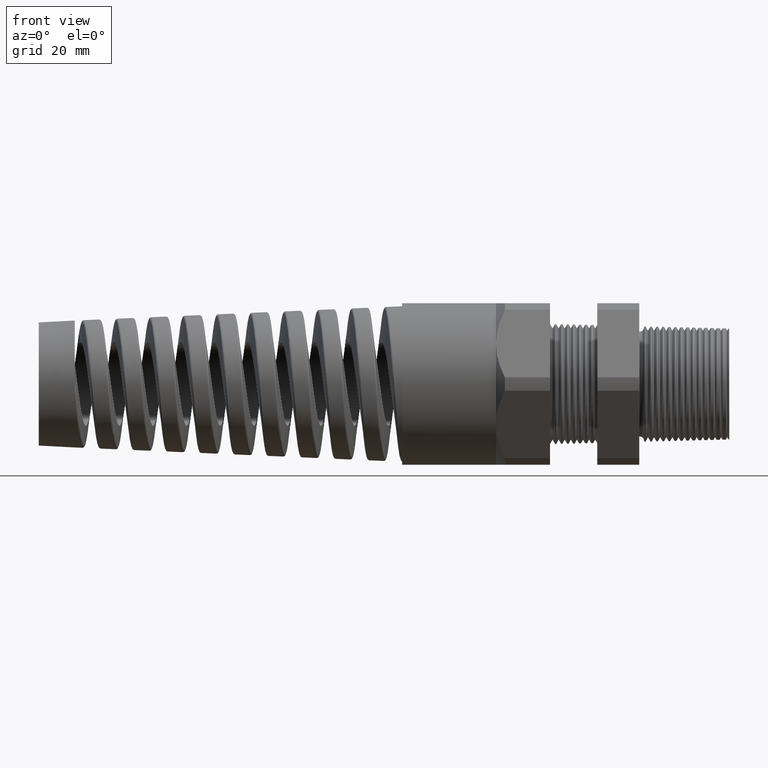
[diagram: clean part render]
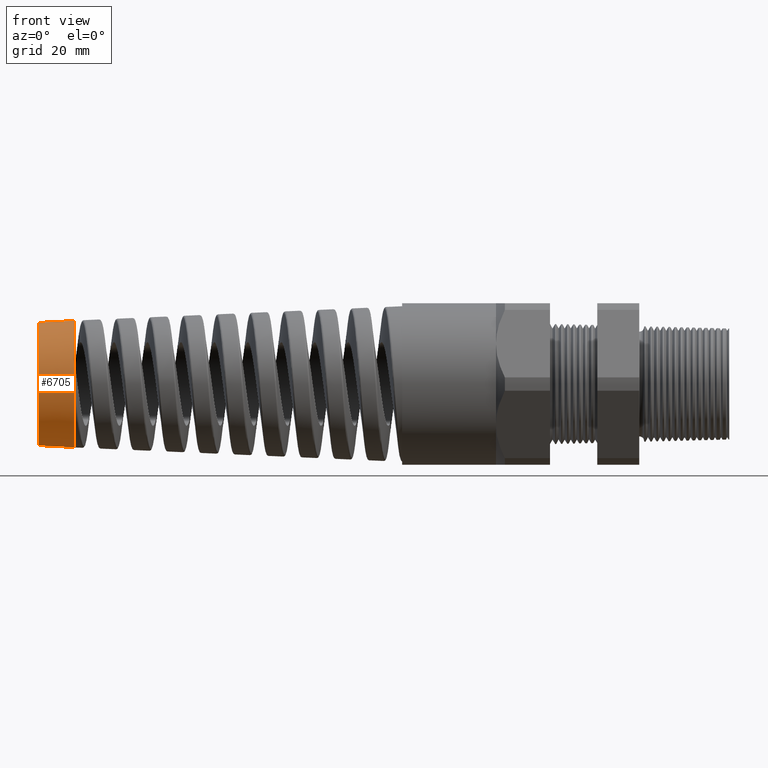
[diagram: same view with one face highlighted and labeled with its STEP entity id]
A machine part, front view. The second image highlights one B-rep face of the part: STEP entity #6705.
In plain terms, the highlighted conical surface has half-angle 3 deg.
Its self-contained STEP definition (entity closure, byte-faithful):
#5193 = CARTESIAN_POINT ( 'NONE',  ( -4.013780000000000600, -5.098406814939281100E-017, -0.4163165100736792000 ) ) ;
#5803 = EDGE_CURVE ( 'NONE', #5805, #18643, #9550, .T. ) ;
#5805 = VERTEX_POINT ( 'NONE', #9541 ) ;
#6705 = ADVANCED_FACE ( 'NONE', ( #11883 ), #11877, .T. ) ;
#6706 = EDGE_LOOP ( 'NONE', ( #6707, #6749, #6751, #6752, #6755 ) ) ;
#6707 = ORIENTED_EDGE ( 'NONE', *, *, #6746, .F. ) ;
#6746 = EDGE_CURVE ( 'NONE', #6747, #6748, #12119, .T. ) ;
#6747 = VERTEX_POINT ( 'NONE', #12171 ) ;
#6748 = VERTEX_POINT ( 'NONE', #12170 ) ;
#6749 = ORIENTED_EDGE ( 'NONE', *, *, #6750, .T. ) ;
#6750 = EDGE_CURVE ( 'NONE', #6747, #18643, #12169, .T. ) ;
#6751 = ORIENTED_EDGE ( 'NONE', *, *, #5803, .F. ) ;
#6752 = ORIENTED_EDGE ( 'NONE', *, *, #6753, .T. ) ;
#6753 = EDGE_CURVE ( 'NONE', #5805, #6754, #12165, .T. ) ;
#6754 = VERTEX_POINT ( 'NONE', #12160 ) ;
#6755 = ORIENTED_EDGE ( 'NONE', *, *, #6756, .F. ) ;
#6756 = EDGE_CURVE ( 'NONE', #6748, #6754, #12159, .T. ) ;
#9541 = CARTESIAN_POINT ( 'NONE',  ( -4.013780000000000600, -0.4127907559573078000, -0.05406688779763648600 ) ) ;
#9546 = DIRECTION ( 'NONE',  ( 0.0000000000000000000, 0.0000000000000000000, -1.000000000000000000 ) ) ;
#9547 = DIRECTION ( 'NONE',  ( 1.000000000000000000, -0.0000000000000000000, -0.0000000000000000000 ) ) ;
#9548 = CARTESIAN_POINT ( 'NONE',  ( -4.013780000000000600, 0.0000000000000000000, 0.0000000000000000000 ) ) ;
#9549 = AXIS2_PLACEMENT_3D ( 'NONE', #9548, #9547, #9546 ) ;
#9550 = CIRCLE ( 'NONE', #9549, 0.4163165100736734800 ) ;
#11874 = DIRECTION ( 'NONE',  ( 0.0000000000000000000, 0.0000000000000000000, 1.000000000000000000 ) ) ;
#11875 = DIRECTION ( 'NONE',  ( 1.000000000000000000, -0.0000000000000000000, -0.0000000000000000000 ) ) ;
#11876 = AXIS2_PLACEMENT_3D ( 'NONE', #11878, #11875, #11874 ) ;
#11877 = CONICAL_SURFACE ( 'NONE', #11876, 0.4163165100736792000, 0.05235987755983000100 ) ;
#11878 = CARTESIAN_POINT ( 'NONE',  ( -4.013780000000000600, 0.0000000000000000000, 0.0000000000000000000 ) ) ;
#11883 = FACE_OUTER_BOUND ( 'NONE', #6706, .T. ) ;
#12119 = CIRCLE ( 'NONE', #12175, 0.4039367196918584000 ) ;
#12156 = DIRECTION ( 'NONE',  ( 0.9986295347545738300, 0.0000000000000000000, 0.05233595624294395300 ) ) ;
#12157 = VECTOR ( 'NONE', #12156, 39.37007874015748900 ) ;
#12158 = CARTESIAN_POINT ( 'NONE',  ( -4.013780000000000600, 0.0000000000000000000, 0.4163165100736792000 ) ) ;
#12159 = LINE ( 'NONE', #12158, #12157 ) ;
#12160 = CARTESIAN_POINT ( 'NONE',  ( -4.013780000000000600, 0.0000000000000000000, 0.4163165100736792000 ) ) ;
#12161 = DIRECTION ( 'NONE',  ( 0.0000000000000000000, 0.0000000000000000000, 1.000000000000000000 ) ) ;
#12162 = DIRECTION ( 'NONE',  ( -1.000000000000000000, 0.0000000000000000000, 0.0000000000000000000 ) ) ;
#12163 = CARTESIAN_POINT ( 'NONE',  ( -4.013780000000000600, 0.0000000000000000000, 0.0000000000000000000 ) ) ;
#12164 = AXIS2_PLACEMENT_3D ( 'NONE', #12163, #12162, #12161 ) ;
#12165 = CIRCLE ( 'NONE', #12164, 0.4163165100736792000 ) ;
#12166 = DIRECTION ( 'NONE',  ( 0.9986295347545738300, -6.409306129323724800E-018, -0.05233595624294395300 ) ) ;
#12167 = VECTOR ( 'NONE', #12166, 39.37007874015748900 ) ;
#12168 = CARTESIAN_POINT ( 'NONE',  ( -4.013780000000000600, -5.098406814939281100E-017, -0.4163165100736792000 ) ) ;
#12169 = LINE ( 'NONE', #12168, #12167 ) ;
#12170 = CARTESIAN_POINT ( 'NONE',  ( -4.250000472440945000, 0.0000000000000000000, 0.4039367196918584000 ) ) ;
#12171 = CARTESIAN_POINT ( 'NONE',  ( -4.250000472440945000, -5.022602461613220300E-017, -0.4039367196918584000 ) ) ;
#12172 = DIRECTION ( 'NONE',  ( 0.0000000000000000000, 0.0000000000000000000, 1.000000000000000000 ) ) ;
#12173 = DIRECTION ( 'NONE',  ( -1.000000000000000000, 0.0000000000000000000, 0.0000000000000000000 ) ) ;
#12174 = CARTESIAN_POINT ( 'NONE',  ( -4.250000472440945000, 0.0000000000000000000, 0.0000000000000000000 ) ) ;
#12175 = AXIS2_PLACEMENT_3D ( 'NONE', #12174, #12173, #12172 ) ;
#18643 = VERTEX_POINT ( 'NONE', #5193 ) ;